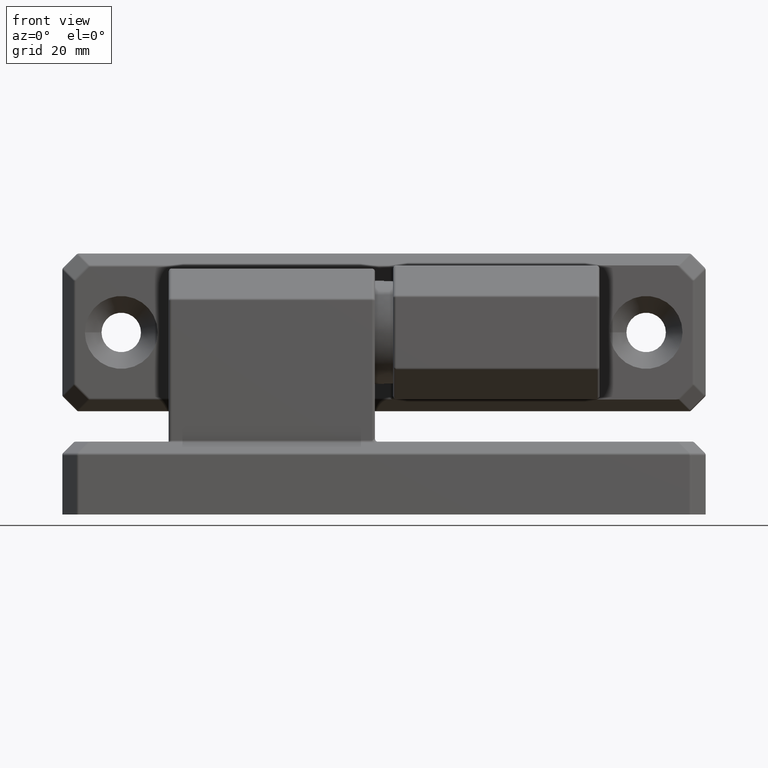
[diagram: clean part render]
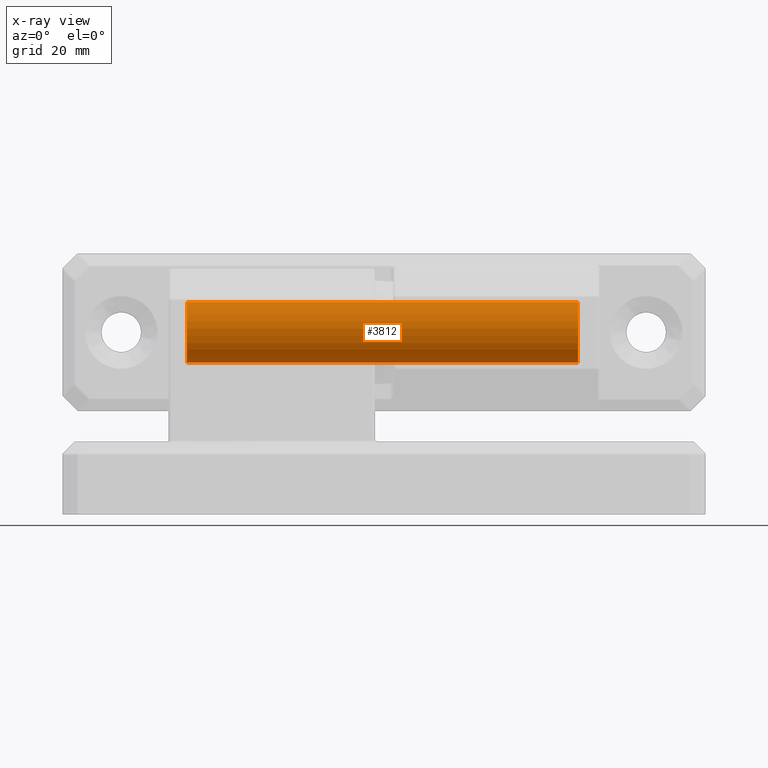
[diagram: x-ray — body ghosted, one internal face saturated and labeled with its STEP entity id]
A machine part, front view, then the same camera in x-ray: the body is ghosted and one INTERNAL B-rep face — a face not visible from any outside direction — is saturated and labeled: STEP entity #3812.
In plain terms, the highlighted cylindrical surface (bore or boss wall) has radius 5 mm, axis along (-1, 0, -0).
Its self-contained STEP definition (entity closure, byte-faithful):
#68=FACE_BOUND('',#1248,.T.);
#748=CYLINDRICAL_SURFACE('',#4225,5.);
#951=FACE_OUTER_BOUND('',#1247,.T.);
#1247=EDGE_LOOP('',(#3070));
#1248=EDGE_LOOP('',(#3071));
#1542=CIRCLE('',#4226,5.);
#1543=CIRCLE('',#4227,5.);
#1830=VERTEX_POINT('',#6551);
#1831=VERTEX_POINT('',#6553);
#2255=EDGE_CURVE('',#1830,#1830,#1542,.T.);
#2256=EDGE_CURVE('',#1831,#1831,#1543,.T.);
#3070=ORIENTED_EDGE('',*,*,#2255,.T.);
#3071=ORIENTED_EDGE('',*,*,#2256,.T.);
#3812=ADVANCED_FACE('',(#951,#68),#748,.T.);
#4225=AXIS2_PLACEMENT_3D('',#6550,#5165,#5166);
#4226=AXIS2_PLACEMENT_3D('',#6552,#5167,#5168);
#4227=AXIS2_PLACEMENT_3D('',#6554,#5169,#5170);
#5165=DIRECTION('center_axis',(-1.,-3.41607084500048E-16,0.));
#5166=DIRECTION('ref_axis',(0.,0.,1.));
#5167=DIRECTION('center_axis',(1.,3.41607084500048E-16,0.));
#5168=DIRECTION('ref_axis',(0.,0.,1.));
#5169=DIRECTION('center_axis',(-1.,-3.41607084500048E-16,0.));
#5170=DIRECTION('ref_axis',(0.,0.,1.));
#6550=CARTESIAN_POINT('Origin',(32.,1.14438373307516E-14,30.));
#6551=CARTESIAN_POINT('',(-32.5,-9.97749621992782E-15,25.));
#6552=CARTESIAN_POINT('Origin',(-32.5,-1.05898196195015E-14,30.));
#6553=CARTESIAN_POINT('',(32.,1.20561607303253E-14,25.));
#6554=CARTESIAN_POINT('Origin',(32.,1.14438373307516E-14,30.));